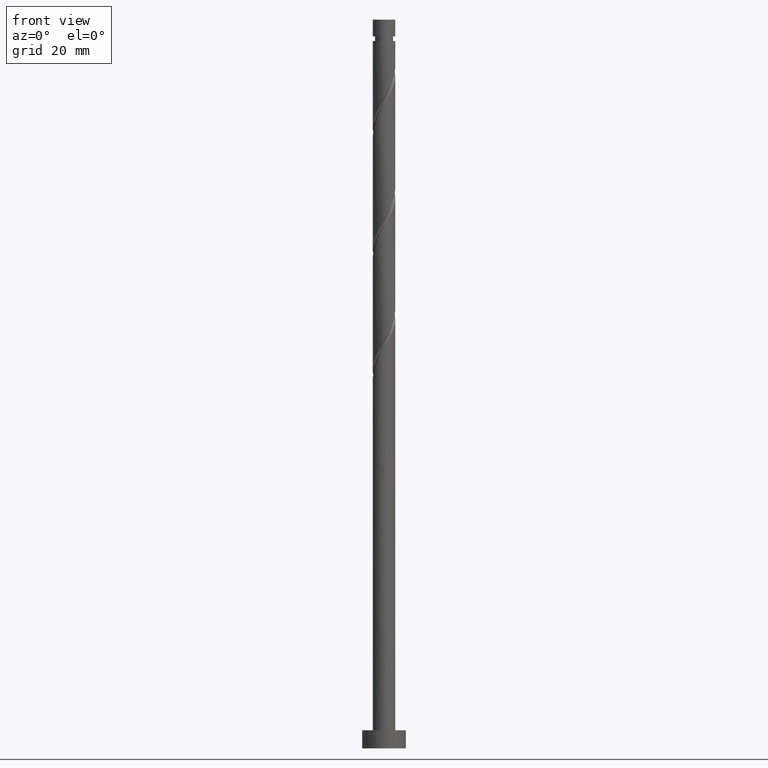
[diagram: clean part render]
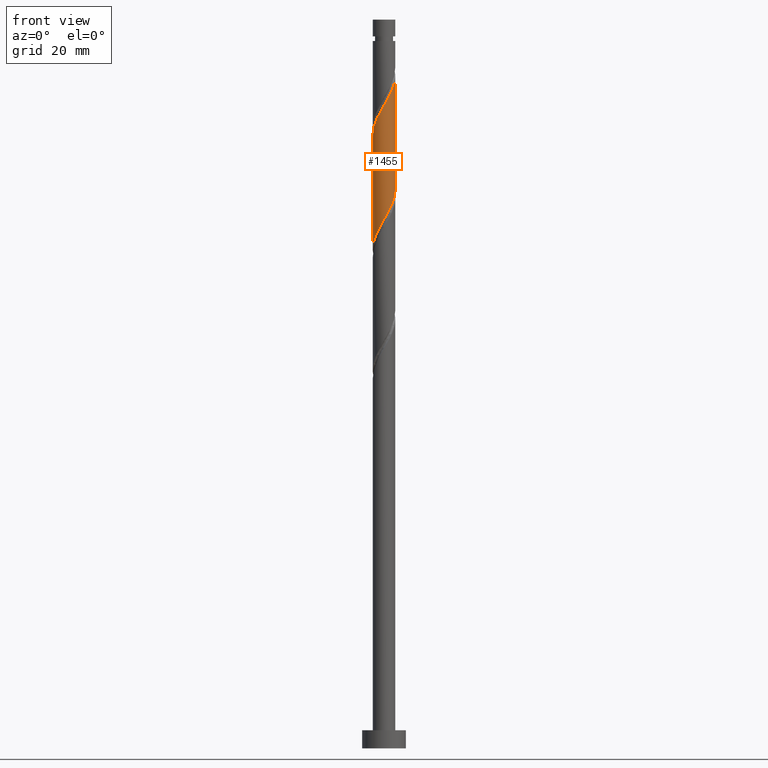
[diagram: same view with one face highlighted and labeled with its STEP entity id]
A machine part, front view. The second image highlights one B-rep face of the part: STEP entity #1455.
In plain terms, the highlighted cylindrical surface (edge-blend (fillet) strip) has radius 3.1 mm, axis along (-0, -0, -1).
Its self-contained STEP definition (entity closure, byte-faithful):
#1 = CARTESIAN_POINT ( 'NONE',  ( 3.100000000000000533, 4.501089117529644308E-15, 153.5358491587207652 ) ) ;
#10 = CARTESIAN_POINT ( 'NONE',  ( 2.359012395595049938, -2.052224327502170542, 180.9445047257328838 ) ) ;
#19 = CARTESIAN_POINT ( 'NONE',  ( 2.053244326128038200, -2.322539071194075877, 180.2500602812884267 ) ) ;
#31 = ORIENTED_EDGE ( 'NONE', *, *, #83, .F. ) ;
#83 = EDGE_CURVE ( 'NONE', #1148, #589, #646, .T. ) ;
#88 = CARTESIAN_POINT ( 'NONE',  ( -2.592853814885981656, -1.747476256661028016, 171.2222825035106837 ) ) ;
#90 = CARTESIAN_POINT ( 'NONE',  ( 3.100000000000000089, 3.796405077356794918E-16, 200.0000000000000000 ) ) ;
#93 = EDGE_CURVE ( 'NONE', #1016, #589, #1189, .T. ) ;
#107 = CARTESIAN_POINT ( 'NONE',  ( 2.774819207282405387, -1.382164377668822164, 151.0833936146217127 ) ) ;
#112 = CARTESIAN_POINT ( 'NONE',  ( 3.100000000000003197, -1.031811126609779433E-15, 184.7420491816338597 ) ) ;
#116 = CARTESIAN_POINT ( 'NONE',  ( -1.016852498676614980, -2.956784599678835779, 143.4445047257328838 ) ) ;
#131 = CARTESIAN_POINT ( 'NONE',  ( -0.2169319233355973542, -3.119215400321165621, 144.8333936146217980 ) ) ;
#149 = CARTESIAN_POINT ( 'NONE',  ( 3.100000000000002309, -0.09530005013879859488, 184.5788854936057533 ) ) ;
#159 = CARTESIAN_POINT ( 'NONE',  ( 0.2169319233355950505, -3.119215400321167841, 176.7778380590662266 ) ) ;
#232 = CARTESIAN_POINT ( 'NONE',  ( -1.371739143660140492, -2.809785738221576512, 174.0000602812884551 ) ) ;
#249 = CARTESIAN_POINT ( 'NONE',  ( -1.747476256661028238, -2.592853814885977215, 142.0556158368439981 ) ) ;
#264 = CARTESIAN_POINT ( 'NONE',  ( 1.371739143660136495, -2.809785738221574292, 147.6111713923995410 ) ) ;
#275 = CARTESIAN_POINT ( 'NONE',  ( 1.747476256661027350, -2.592853814885982100, 179.5556158368439128 ) ) ;
#284 = CARTESIAN_POINT ( 'NONE',  ( 3.100000000000003197, -1.031811126609779433E-15, 184.7420491816338597 ) ) ;
#295 = CARTESIAN_POINT ( 'NONE',  ( 3.094146113249975460, -0.1904201403740988507, 184.4167269479550555 ) ) ;
#309 = ORIENTED_EDGE ( 'NONE', *, *, #93, .T. ) ;
#360 = CARTESIAN_POINT ( 'NONE',  ( -2.052224327502170542, -2.359012395595049938, 172.6111713923995126 ) ) ;
#367 = CARTESIAN_POINT ( 'NONE',  ( -3.069076826178780415, -0.5977722040837869510, 137.8889491701773409 ) ) ;
#379 = CARTESIAN_POINT ( 'NONE',  ( -2.939431282200177353, -0.9847556738719620562, 138.5833936146217980 ) ) ;
#478 = AXIS2_PLACEMENT_3D ( 'NONE', #1649, #712, #1352 ) ;
#483 = CARTESIAN_POINT ( 'NONE',  ( -2.322539071194074545, -2.053244326128038200, 171.9167269479550839 ) ) ;
#484 = ORIENTED_EDGE ( 'NONE', *, *, #1704, .F. ) ;
#490 = CARTESIAN_POINT ( 'NONE',  ( 0.1904201403740945764, -3.094146113249972796, 145.5278380590662266 ) ) ;
#502 = CARTESIAN_POINT ( 'NONE',  ( 2.956784599678834002, -1.016852498676616312, 151.7778380590661982 ) ) ;
#514 = DIRECTION ( 'NONE',  ( -0.000000000000000000, -0.000000000000000000, -1.000000000000000000 ) ) ;
#532 = CARTESIAN_POINT ( 'NONE',  ( 0.9847556738719618341, -2.939431282200177353, 146.9167269479551408 ) ) ;
#536 = FACE_OUTER_BOUND ( 'NONE', #1680, .T. ) ;
#544 = CARTESIAN_POINT ( 'NONE',  ( 2.939431282200180462, -0.9847556738719657199, 183.0278380590662266 ) ) ;
#589 = VERTEX_POINT ( 'NONE', #1570 ) ;
#634 = DIRECTION ( 'NONE',  ( -0.000000000000000000, -0.000000000000000000, -1.000000000000000000 ) ) ;
#646 =( BOUNDED_CURVE ( )  B_SPLINE_CURVE ( 2, ( #1603, #1457, #1434, #502, #107, #1711, #1613, #1572, #938, #264, #532, #1343, #490, #131, #1182, #116, #1312, #249, #668, #1084, #1581, #905, #379, #367, #912, #923, #1450 ),
 .UNSPECIFIED., .F., .T. ) 
 B_SPLINE_CURVE_WITH_KNOTS ( ( 3, 2, 2, 2, 2, 2, 2, 2, 2, 2, 2, 2, 2, 3 ),
 ( 0.5545317669814462391, 0.5625000000000000000, 0.5729166666666666297, 0.5833333333333333703, 0.5937500000000000000, 0.6041666666666666297, 0.6145833333333333703, 0.6250000000000000000, 0.6354166666666666297, 0.6458333333333333703, 0.6562500000000000000, 0.6666666666666666297, 0.6770833333333333703, 0.6795317669814461281 ),
 .UNSPECIFIED. ) 
 CURVE ( )  GEOMETRIC_REPRESENTATION_ITEM ( )  RATIONAL_B_SPLINE_CURVE ( ( 0.9062941362546447222, 0.9031415850403489154, 0.9090909090909243817, 0.9013135103398428605, 0.9090909090909243817, 0.9013135103398428605, 0.9090909090909243817, 0.9013135103398428605, 0.9090909090909243817, 0.9013135103398428605, 0.9090909090909243817, 0.9013135103398428605, 0.9090909090909243817, 0.9013135103398428605, 0.9090909090909243817, 0.9013135103398428605, 0.9090909090909243817, 0.9013135103398428605, 0.9090909090909243817, 0.9013135103398428605, 0.9090909090909243817, 0.9013135103398428605, 0.9090909090909243817, 0.9013135103398428605, 0.9090909090909243817, 0.9072628343904183268, 0.9062941362546449442 ) ) 
 REPRESENTATION_ITEM ( '' )  );
#668 = CARTESIAN_POINT ( 'NONE',  ( -2.053244326128037756, -2.322539071194071436, 141.3611713923995978 ) ) ;
#690 = CARTESIAN_POINT ( 'NONE',  ( 2.584399066908312115, -1.711981735581156183, 181.6389491701772840 ) ) ;
#712 = DIRECTION ( 'NONE',  ( -0.000000000000000000, -0.000000000000000000, -1.000000000000000000 ) ) ;
#753 = CARTESIAN_POINT ( 'NONE',  ( -3.100000000000003642, 3.409462853145358298E-15, 168.0753825149672309 ) ) ;
#763 = CARTESIAN_POINT ( 'NONE',  ( -0.9847556738719654978, -2.939431282200180462, 174.6945047257328838 ) ) ;
#767 = LINE ( 'NONE', #90, #1441 ) ;
#811 = CYLINDRICAL_SURFACE ( 'NONE', #478, 3.100000000000000089 ) ;
#905 = CARTESIAN_POINT ( 'NONE',  ( -2.809785738221574292, -1.371739143660136495, 139.2778380590662266 ) ) ;
#906 = CARTESIAN_POINT ( 'NONE',  ( -1.711981735581154407, -2.584399066908313003, 173.3056158368439696 ) ) ;
#912 = CARTESIAN_POINT ( 'NONE',  ( -3.094146113249972352, -0.1904201403740952703, 137.1945047257328838 ) ) ;
#923 = CARTESIAN_POINT ( 'NONE',  ( -3.099999999999999201, -0.09530005013879394582, 137.0323461800821860 ) ) ;
#924 = CARTESIAN_POINT ( 'NONE',  ( -2.956784599678840220, -1.016852498676614092, 169.8333936146217695 ) ) ;
#931 = CARTESIAN_POINT ( 'NONE',  ( -3.038000000000003364, -0.6168922110061052511, 169.1389491701773125 ) ) ;
#938 = CARTESIAN_POINT ( 'NONE',  ( 1.711981735581150632, -2.584399066908311671, 148.3056158368440265 ) ) ;
#939 = CARTESIAN_POINT ( 'NONE',  ( 0.6168922110061049180, -3.038000000000003364, 177.4722825035106268 ) ) ;
#1016 = VERTEX_POINT ( 'NONE', #1310 ) ;
#1044 = CARTESIAN_POINT ( 'NONE',  ( -0.1904201403740973519, -3.094146113249975460, 176.0833936146217695 ) ) ;
#1084 = CARTESIAN_POINT ( 'NONE',  ( -2.359012395595048606, -2.052224327502166101, 140.6667269479550555 ) ) ;
#1096 = CARTESIAN_POINT ( 'NONE',  ( 2.809785738221576512, -1.371739143660140492, 182.3333936146217695 ) ) ;
#1107 = CARTESIAN_POINT ( 'NONE',  ( 1.016852498676613870, -2.956784599678840220, 178.1667269479551408 ) ) ;
#1109 = VERTEX_POINT ( 'NONE', #112 ) ;
#1148 = VERTEX_POINT ( 'NONE', #1 ) ;
#1173 = CARTESIAN_POINT ( 'NONE',  ( -0.5977722040837896156, -3.069076826178783968, 175.3889491701773125 ) ) ;
#1182 = CARTESIAN_POINT ( 'NONE',  ( -0.6168922110061054731, -3.037999999999999812, 144.1389491701773409 ) ) ;
#1189 = LINE ( 'NONE', #1728, #1244 ) ;
#1244 = VECTOR ( 'NONE', #514, 1000.000000000000000 ) ;
#1264 = EDGE_CURVE ( 'NONE', #1109, #1148, #767, .T. ) ;
#1297 = CARTESIAN_POINT ( 'NONE',  ( -2.774819207282409383, -1.382164377668821054, 170.5278380590661698 ) ) ;
#1310 = CARTESIAN_POINT ( 'NONE',  ( -3.100000000000003197, 3.409462853145358298E-15, 168.0753825149672309 ) ) ;
#1312 = CARTESIAN_POINT ( 'NONE',  ( -1.382164377668821054, -2.774819207282405831, 142.7500602812884551 ) ) ;
#1343 = CARTESIAN_POINT ( 'NONE',  ( 0.5977722040837861739, -3.069076826178781303, 146.2222825035106268 ) ) ;
#1352 = DIRECTION ( 'NONE',  ( -1.000000000000000000, 0.000000000000000000, 0.000000000000000000 ) ) ;
#1421 = ORIENTED_EDGE ( 'NONE', *, *, #1264, .F. ) ;
#1434 = CARTESIAN_POINT ( 'NONE',  ( 3.037999999999999812, -0.6168922110061054731, 152.4722825035106268 ) ) ;
#1435 = CARTESIAN_POINT ( 'NONE',  ( -3.100000000000006306, -0.3115617227303389969, 168.6088088841564456 ) ) ;
#1441 = VECTOR ( 'NONE', #634, 1000.000000000000000 ) ;
#1450 = CARTESIAN_POINT ( 'NONE',  ( -3.100000000000000977, -5.174009417492547968E-15, 136.8691824920540796 ) ) ;
#1454 =( BOUNDED_CURVE ( )  B_SPLINE_CURVE ( 2, ( #753, #1435, #931, #924, #1297, #88, #483, #360, #906, #232, #763, #1173, #1044, #159, #939, #1107, #1617, #275, #19, #10, #690, #1096, #544, #1486, #295, #149, #284 ),
 .UNSPECIFIED., .F., .T. ) 
 B_SPLINE_CURVE_WITH_KNOTS ( ( 3, 2, 2, 2, 2, 2, 2, 2, 2, 2, 2, 2, 2, 3 ),
 ( 0.5545317669814457950, 0.5625000000000000000, 0.5729166666666667407, 0.5833333333333332593, 0.5937500000000000000, 0.6041666666666667407, 0.6145833333333332593, 0.6250000000000000000, 0.6354166666666667407, 0.6458333333333332593, 0.6562500000000000000, 0.6666666666666667407, 0.6770833333333332593, 0.6795317669814460171 ),
 .UNSPECIFIED. ) 
 CURVE ( )  GEOMETRIC_REPRESENTATION_ITEM ( )  RATIONAL_B_SPLINE_CURVE ( ( 0.9062941362546504953, 0.9031415850403540224, 0.9090909090909298218, 0.9013135103398480785, 0.9090909090909298218, 0.9013135103398480785, 0.9090909090909298218, 0.9013135103398480785, 0.9090909090909298218, 0.9013135103398480785, 0.9090909090909298218, 0.9013135103398480785, 0.9090909090909298218, 0.9013135103398480785, 0.9090909090909298218, 0.9013135103398480785, 0.9090909090909298218, 0.9013135103398480785, 0.9090909090909298218, 0.9013135103398480785, 0.9090909090909298218, 0.9013135103398480785, 0.9090909090909298218, 0.9013135103398480785, 0.9090909090909298218, 0.9072628343904236559, 0.9062941362546501622 ) ) 
 REPRESENTATION_ITEM ( '' )  );
#1455 = ADVANCED_FACE ( 'NONE', ( #536 ), #811, .T. ) ;
#1457 = CARTESIAN_POINT ( 'NONE',  ( 3.100000000000001421, -0.3115617227303542069, 153.0024227895314937 ) ) ;
#1486 = CARTESIAN_POINT ( 'NONE',  ( 3.069076826178783524, -0.5977722040837909478, 183.7222825035105984 ) ) ;
#1570 = CARTESIAN_POINT ( 'NONE',  ( -3.100000000000000977, -5.174009417492547968E-15, 136.8691824920540796 ) ) ;
#1572 = CARTESIAN_POINT ( 'NONE',  ( 2.052224327502166101, -2.359012395595048606, 149.0000602812883983 ) ) ;
#1581 = CARTESIAN_POINT ( 'NONE',  ( -2.584399066908310783, -1.711981735581151520, 139.9722825035106268 ) ) ;
#1603 = CARTESIAN_POINT ( 'NONE',  ( 3.100000000000000977, 4.501089117529643519E-15, 153.5358491587207652 ) ) ;
#1613 = CARTESIAN_POINT ( 'NONE',  ( 2.322539071194071436, -2.053244326128037756, 149.6945047257328554 ) ) ;
#1617 = CARTESIAN_POINT ( 'NONE',  ( 1.382164377668820388, -2.774819207282409383, 178.8611713923995126 ) ) ;
#1649 = CARTESIAN_POINT ( 'NONE',  ( 0.000000000000000000, 0.000000000000000000, 200.0000000000000000 ) ) ;
#1680 = EDGE_LOOP ( 'NONE', ( #1421, #484, #309, #31 ) ) ;
#1704 = EDGE_CURVE ( 'NONE', #1016, #1109, #1454, .T. ) ;
#1711 = CARTESIAN_POINT ( 'NONE',  ( 2.592853814885977215, -1.747476256661028460, 150.3889491701773125 ) ) ;
#1728 = CARTESIAN_POINT ( 'NONE',  ( -3.100000000000000089, 0.000000000000000000, 200.0000000000000000 ) ) ;